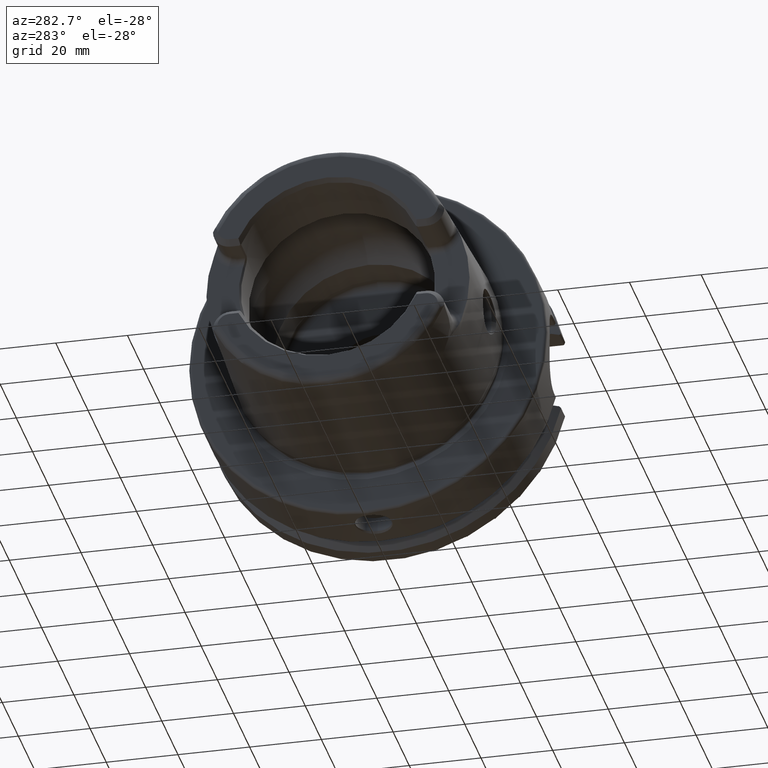
[diagram: clean part render]
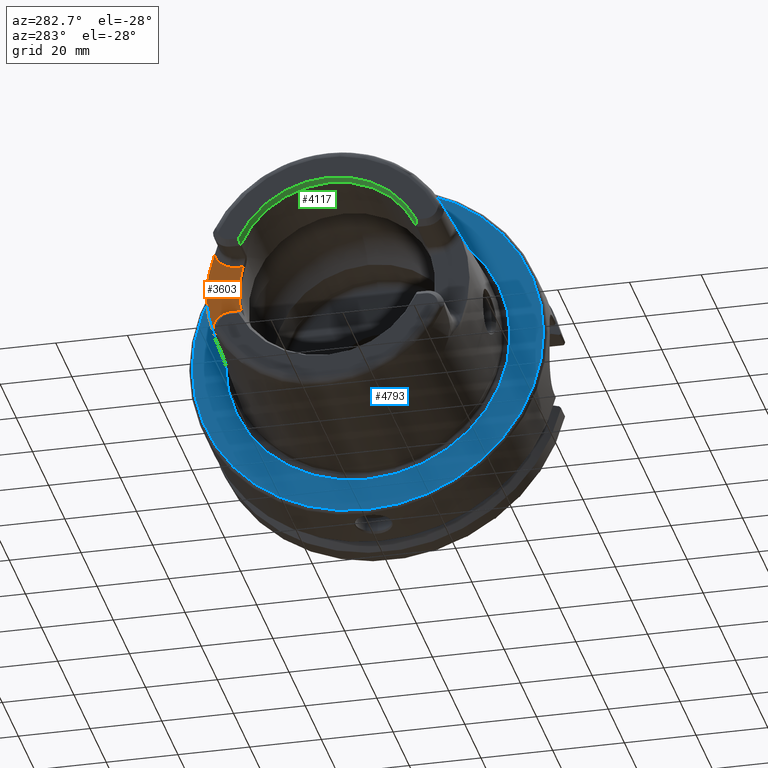
[diagram: same view with three faces highlighted in distinct colors, each labeled with its STEP entity id]
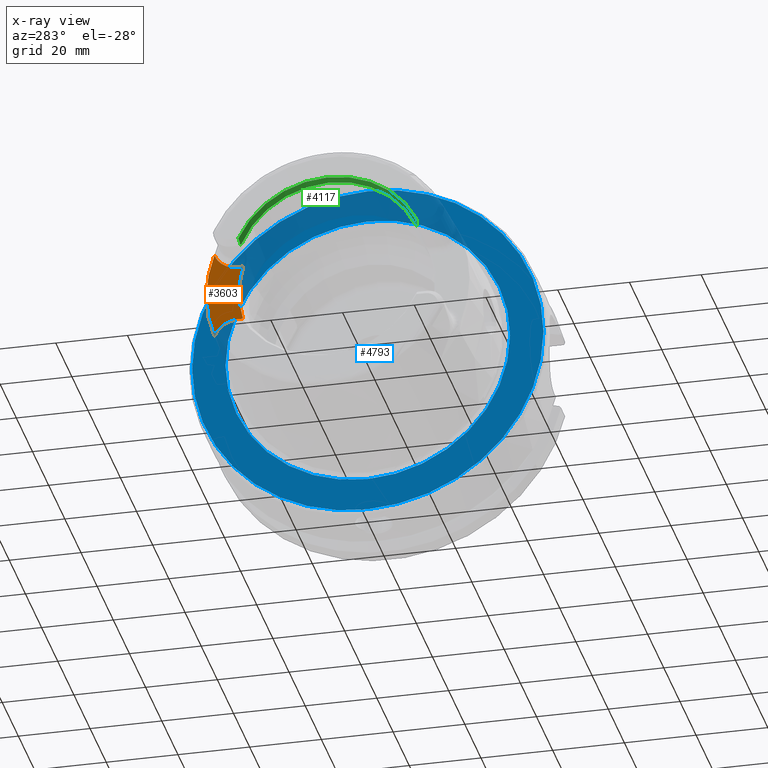
[diagram: x-ray of the same camera — body ghosted, the three highlighted faces saturated]
A machine part, auxiliary view with three faces highlighted in distinct colors.
The next image is the same camera in x-ray (body ghosted, the three faces saturated) — at least one of them is partly hidden behind the body in this view.
Their STEP definitions:

[orange] entity #3603 — the highlighted planar face has unit normal (1, 0, 0).
#195=CARTESIAN_POINT('',(-4.E1,-3.108624468950E-13,-6.261657858886E-14));
#196=DIRECTION('',(-1.E0,0.E0,0.E0));
#197=DIRECTION('',(0.E0,9.549810934720E-1,2.966666666667E-1));
#198=AXIS2_PLACEMENT_3D('',#195,#196,#197);
#200=DIRECTION('',(3.388595954423E-9,-9.999999999999E-1,-3.979276993557E-7));
#201=VECTOR('',#200,1.585510719447E0);
#202=CARTESIAN_POINT('',(-4.E1,2.736999999763E1,-8.010000000698E0));
#203=LINE('',#202,#201);
#204=CARTESIAN_POINT('',(-4.E1,2.737E1,-1.489E1));
#205=DIRECTION('',(1.E0,0.E0,0.E0));
#206=DIRECTION('',(0.E0,9.329763917042E-1,3.599375675344E-1));
#207=AXIS2_PLACEMENT_3D('',#204,#205,#206);
#209=CARTESIAN_POINT('',(-4.E1,0.E0,0.E0));
#210=DIRECTION('',(1.E0,0.E0,0.E0));
#211=DIRECTION('',(0.E0,9.386572714716E-1,-3.448514560120E-1));
#212=AXIS2_PLACEMENT_3D('',#209,#210,#211);
#214=CARTESIAN_POINT('',(-4.E1,2.737E1,1.489E1));
#215=DIRECTION('',(-1.E0,0.E0,0.E0));
#216=DIRECTION('',(0.E0,9.329763917042E-1,-3.599375675344E-1));
#217=AXIS2_PLACEMENT_3D('',#214,#215,#216);
#219=DIRECTION('',(5.671687475202E-9,-9.999999999998E-1,6.823233049794E-7));
#220=VECTOR('',#219,1.585510894542E0);
#221=CARTESIAN_POINT('',(-4.E1,2.736999999887E1,8.010000000311E0));
#222=LINE('',#221,#220);
#1125=CARTESIAN_POINT('',(-3.999999999463E1,2.578448927818E1,
-8.010000631616E0));
#3086=CARTESIAN_POINT('',(-4.E1,3.378887757493E1,-1.241362953536E1));
#3087=CARTESIAN_POINT('',(-4.E1,2.737E1,-8.01E0));
#3088=VERTEX_POINT('',#3086);
#3089=VERTEX_POINT('',#3087);
#3098=CARTESIAN_POINT('',(-4.E1,3.378887757493E1,1.241362953536E1));
#3099=CARTESIAN_POINT('',(-4.E1,2.737E1,8.01E0));
#3100=VERTEX_POINT('',#3098);
#3101=VERTEX_POINT('',#3099);
#3104=VERTEX_POINT('',#1125);
#3108=CARTESIAN_POINT('',(-4.E1,2.578448952374E1,8.01E0));
#3109=VERTEX_POINT('',#3108);
#3586=CARTESIAN_POINT('',(-4.E1,0.E0,1.001E1));
#3587=DIRECTION('',(1.E0,0.E0,0.E0));
#3588=DIRECTION('',(0.E0,0.E0,-1.E0));
#3589=AXIS2_PLACEMENT_3D('',#3586,#3587,#3588);
#3590=PLANE('',#3589);
#3592=ORIENTED_EDGE('',*,*,#3591,.T.);
#3594=ORIENTED_EDGE('',*,*,#3593,.F.);
#3595=ORIENTED_EDGE('',*,*,#3577,.F.);
#3596=ORIENTED_EDGE('',*,*,#3475,.T.);
#3598=ORIENTED_EDGE('',*,*,#3597,.T.);
#3600=ORIENTED_EDGE('',*,*,#3599,.T.);
#3601=EDGE_LOOP('',(#3592,#3594,#3595,#3596,#3598,#3600));
#3602=FACE_OUTER_BOUND('',#3601,.F.);
#3603=ADVANCED_FACE('',(#3602),#3590,.F.);
#199=CIRCLE('',#198,2.7E1);
#208=CIRCLE('',#207,6.88E0);
#213=CIRCLE('',#212,3.599703385023E1);
#218=CIRCLE('',#217,6.88E0);
#3475=EDGE_CURVE('',#3088,#3100,#213,.T.);
#3577=EDGE_CURVE('',#3088,#3089,#208,.T.);
#3591=EDGE_CURVE('',#3109,#3104,#199,.T.);
#3593=EDGE_CURVE('',#3089,#3104,#203,.T.);
#3597=EDGE_CURVE('',#3100,#3101,#218,.T.);
#3599=EDGE_CURVE('',#3101,#3109,#222,.T.);

[blue] entity #4793 — the highlighted planar face has unit normal (1, 0, 0).
#1250=CARTESIAN_POINT('',(0.E0,0.E0,0.E0));
#1251=DIRECTION('',(1.E0,0.E0,0.E0));
#1252=DIRECTION('',(0.E0,0.E0,-1.E0));
#1253=AXIS2_PLACEMENT_3D('',#1250,#1251,#1252);
#1255=CARTESIAN_POINT('',(0.E0,0.E0,0.E0));
#1256=DIRECTION('',(1.E0,0.E0,0.E0));
#1257=DIRECTION('',(0.E0,0.E0,1.E0));
#1258=AXIS2_PLACEMENT_3D('',#1255,#1256,#1257);
#1260=CARTESIAN_POINT('',(0.E0,0.E0,0.E0));
#1261=DIRECTION('',(-1.E0,0.E0,0.E0));
#1262=DIRECTION('',(0.E0,0.E0,-1.E0));
#1263=AXIS2_PLACEMENT_3D('',#1260,#1261,#1262);
#1265=CARTESIAN_POINT('',(0.E0,0.E0,0.E0));
#1266=DIRECTION('',(-1.E0,0.E0,0.E0));
#1267=DIRECTION('',(0.E0,0.E0,1.E0));
#1268=AXIS2_PLACEMENT_3D('',#1265,#1266,#1267);
#2957=CARTESIAN_POINT('',(0.E0,0.E0,-3.96822E1));
#2958=CARTESIAN_POINT('',(0.E0,0.E0,3.96822E1));
#2959=VERTEX_POINT('',#2957);
#2960=VERTEX_POINT('',#2958);
#3270=CARTESIAN_POINT('',(0.E0,0.E0,-4.9E1));
#3271=CARTESIAN_POINT('',(0.E0,-1.200153863164E-14,4.9E1));
#3272=VERTEX_POINT('',#3270);
#3273=VERTEX_POINT('',#3271);
#4778=CARTESIAN_POINT('',(0.E0,0.E0,0.E0));
#4779=DIRECTION('',(1.E0,0.E0,0.E0));
#4780=DIRECTION('',(0.E0,0.E0,1.E0));
#4781=AXIS2_PLACEMENT_3D('',#4778,#4779,#4780);
#4782=PLANE('',#4781);
#4784=ORIENTED_EDGE('',*,*,#4783,.F.);
#4786=ORIENTED_EDGE('',*,*,#4785,.F.);
#4787=EDGE_LOOP('',(#4784,#4786));
#4788=FACE_OUTER_BOUND('',#4787,.F.);
#4789=ORIENTED_EDGE('',*,*,#4734,.F.);
#4790=ORIENTED_EDGE('',*,*,#4719,.F.);
#4791=EDGE_LOOP('',(#4789,#4790));
#4792=FACE_BOUND('',#4791,.F.);
#4793=ADVANCED_FACE('',(#4788,#4792),#4782,.F.);
#1254=CIRCLE('',#1253,3.96822E1);
#1259=CIRCLE('',#1258,3.96822E1);
#1264=CIRCLE('',#1263,4.9E1);
#1269=CIRCLE('',#1268,4.9E1);
#4719=EDGE_CURVE('',#2960,#2959,#1259,.T.);
#4734=EDGE_CURVE('',#2959,#2960,#1254,.T.);
#4783=EDGE_CURVE('',#3272,#3273,#1264,.T.);
#4785=EDGE_CURVE('',#3273,#3272,#1269,.T.);

[green] entity #4117 — the highlighted conical surface has half-angle 30 deg.
#275=CARTESIAN_POINT('',(-4.85E1,0.E0,0.E0));
#276=DIRECTION('',(1.E0,0.E0,0.E0));
#277=DIRECTION('',(0.E0,9.211282370446E-1,3.892592592593E-1));
#278=AXIS2_PLACEMENT_3D('',#275,#276,#277);
#321=CARTESIAN_POINT('',(-4.85E1,0.E0,0.E0));
#322=DIRECTION('',(1.E0,0.E0,0.E0));
#323=DIRECTION('',(0.E0,0.E0,1.E0));
#324=AXIS2_PLACEMENT_3D('',#321,#322,#323);
#804=CARTESIAN_POINT('',(-4.85E1,2.440989828168E1,1.031537037037E1));
#805=CARTESIAN_POINT('',(-4.853211319116E1,2.443786142840E1,1.029682981081E1));
#806=CARTESIAN_POINT('',(-4.859654869644E1,2.449383631017E1,1.025971647590E1));
#807=CARTESIAN_POINT('',(-4.866140227181E1,2.454990850812E1,1.022253861691E1));
#808=CARTESIAN_POINT('',(-4.869393353254E1,2.457796897212E1,1.020393353254E1));
#810=CARTESIAN_POINT('',(-5.E1,2.482779181483E1,1.151E1));
#811=CARTESIAN_POINT('',(-4.956388661430E1,2.475243950706E1,1.107388661430E1));
#812=CARTESIAN_POINT('',(-4.912852609133E1,2.466921784254E1,1.063852609133E1));
#813=CARTESIAN_POINT('',(-4.869393353254E1,2.457796897212E1,1.020393353254E1));
#815=CARTESIAN_POINT('',(-5.E1,-2.664535259100E-14,0.E0));
#816=DIRECTION('',(1.E0,0.E0,0.E0));
#817=DIRECTION('',(0.E0,9.072487308076E-1,4.205945083428E-1));
#818=AXIS2_PLACEMENT_3D('',#815,#816,#817);
#820=CARTESIAN_POINT('',(-4.869393353254E1,-2.457796897212E1,1.020393353254E1));
#821=CARTESIAN_POINT('',(-4.912852609133E1,-2.466921784254E1,1.063852609133E1));
#822=CARTESIAN_POINT('',(-4.956388661430E1,-2.475243950706E1,1.107388661430E1));
#823=CARTESIAN_POINT('',(-5.E1,-2.482779181483E1,1.151E1));
#983=CARTESIAN_POINT('',(-4.869393353254E1,-2.457796897212E1,1.020393353254E1));
#984=CARTESIAN_POINT('',(-4.866140258012E1,-2.454990877406E1,1.022253844058E1));
#985=CARTESIAN_POINT('',(-4.859654931157E1,-2.449383684327E1,1.025971612244E1));
#986=CARTESIAN_POINT('',(-4.853211349795E1,-2.443786169555E1,1.029682963368E1));
#987=CARTESIAN_POINT('',(-4.849999999999E1,-2.440989828167E1,1.031537037038E1));
#3128=CARTESIAN_POINT('',(-4.85E1,0.E0,2.65E1));
#3129=CARTESIAN_POINT('',(-4.85E1,-2.440989828168E1,1.031537037037E1));
#3130=VERTEX_POINT('',#3128);
#3131=VERTEX_POINT('',#3129);
#3132=CARTESIAN_POINT('',(-4.85E1,2.440989828168E1,1.031537037037E1));
#3133=VERTEX_POINT('',#3132);
#3164=CARTESIAN_POINT('',(-5.E1,-2.482779181483E1,1.151E1));
#3165=VERTEX_POINT('',#3164);
#3172=CARTESIAN_POINT('',(-4.869393353254E1,-2.457796897212E1,
1.020393353254E1));
#3173=VERTEX_POINT('',#3172);
#3178=CARTESIAN_POINT('',(-5.E1,2.482779181483E1,1.151E1));
#3179=VERTEX_POINT('',#3178);
#3186=CARTESIAN_POINT('',(-4.869393353254E1,2.457796897212E1,1.020393353254E1));
#3187=VERTEX_POINT('',#3186);
#4101=CARTESIAN_POINT('',(-4.924999999860E1,-2.664535259100E-14,0.E0));
#4102=DIRECTION('',(-1.E0,0.E0,0.E0));
#4103=DIRECTION('',(0.E0,0.E0,-1.E0));
#4104=AXIS2_PLACEMENT_3D('',#4101,#4102,#4103);
#4105=CONICAL_SURFACE('',#4104,2.693301270108E1,3.E1);
#4106=ORIENTED_EDGE('',*,*,#4033,.F.);
#4107=ORIENTED_EDGE('',*,*,#4004,.T.);
#4109=ORIENTED_EDGE('',*,*,#4108,.F.);
#4111=ORIENTED_EDGE('',*,*,#4110,.T.);
#4112=ORIENTED_EDGE('',*,*,#3687,.F.);
#4113=ORIENTED_EDGE('',*,*,#3651,.F.);
#4114=ORIENTED_EDGE('',*,*,#4092,.T.);
#4115=EDGE_LOOP('',(#4106,#4107,#4109,#4111,#4112,#4113,#4114));
#4116=FACE_OUTER_BOUND('',#4115,.F.);
#4117=ADVANCED_FACE('',(#4116),#4105,.F.);
#279=CIRCLE('',#278,2.65E1);
#325=CIRCLE('',#324,2.65E1);
#809=B_SPLINE_CURVE_WITH_KNOTS('',3,(#804,#805,#806,#807,#808),.UNSPECIFIED.,
.F.,.F.,(4,1,4),(0.E0,5.E-1,1.E0),.UNSPECIFIED.);
#814=B_SPLINE_CURVE_WITH_KNOTS('',3,(#810,#811,#812,#813),.UNSPECIFIED.,.F.,.F.,
(4,4),(0.E0,1.E0),.UNSPECIFIED.);
#819=CIRCLE('',#818,2.736602540378E1);
#824=B_SPLINE_CURVE_WITH_KNOTS('',3,(#820,#821,#822,#823),.UNSPECIFIED.,.F.,.F.,
(4,4),(0.E0,1.E0),.UNSPECIFIED.);
#988=B_SPLINE_CURVE_WITH_KNOTS('',3,(#983,#984,#985,#986,#987),.UNSPECIFIED.,
.F.,.F.,(4,1,4),(0.E0,5.E-1,1.E0),.UNSPECIFIED.);
#3651=EDGE_CURVE('',#3133,#3130,#279,.T.);
#3687=EDGE_CURVE('',#3130,#3131,#325,.T.);
#4004=EDGE_CURVE('',#3179,#3165,#819,.T.);
#4033=EDGE_CURVE('',#3179,#3187,#814,.T.);
#4092=EDGE_CURVE('',#3133,#3187,#809,.T.);
#4108=EDGE_CURVE('',#3173,#3165,#824,.T.);
#4110=EDGE_CURVE('',#3173,#3131,#988,.T.);